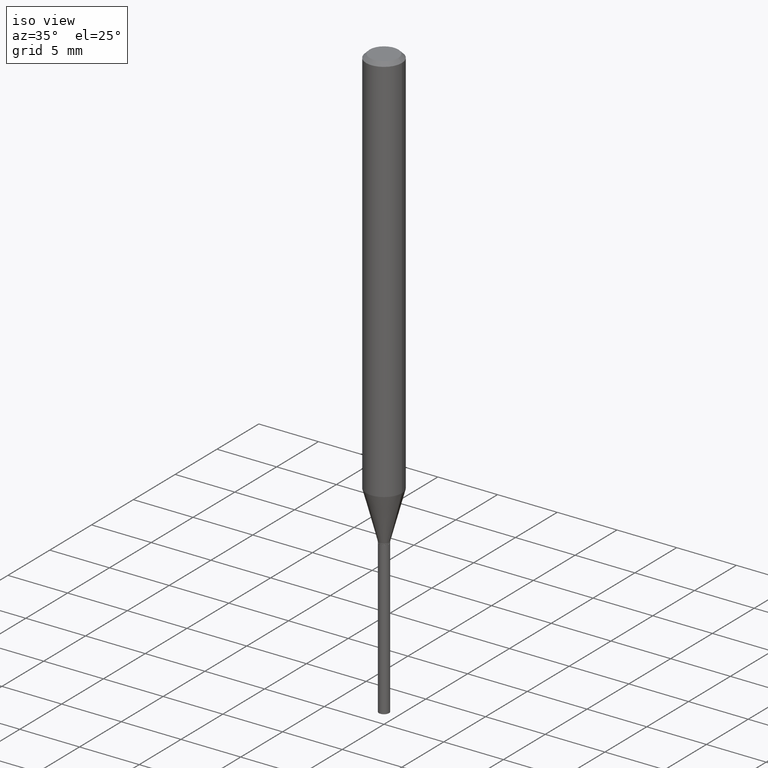
[diagram: clean part render]
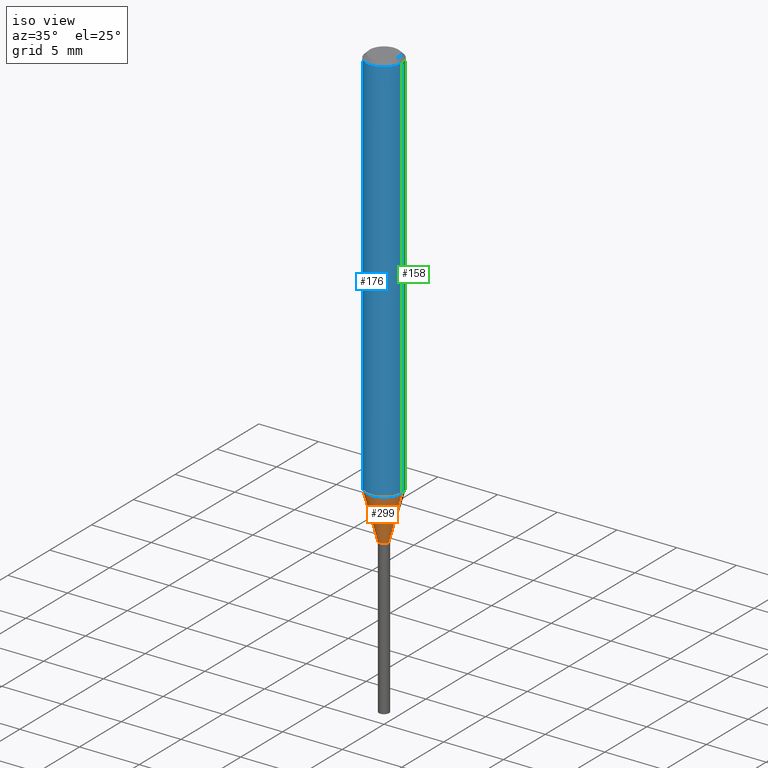
[diagram: same view with three faces highlighted in distinct colors, each labeled with its STEP entity id]
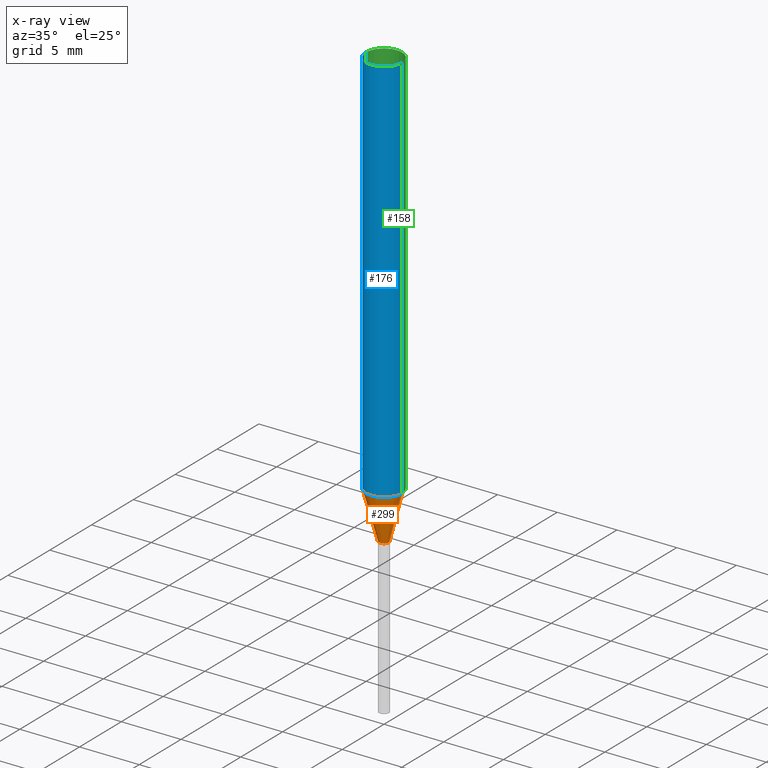
[diagram: x-ray of the same camera — body ghosted, the three highlighted faces saturated]
A machine part, iso view with three faces highlighted in distinct colors.
The next image is the same camera in x-ray (body ghosted, the three faces saturated) — at least one of them is partly hidden behind the body in this view.
Their STEP definitions:

[orange] entity #299 — the highlighted conical surface has half-angle 15 deg.
#9 = VECTOR ( 'NONE', #57, 39.37007874015748143 ) ;
#22 = CARTESIAN_POINT ( 'NONE',  ( 3.164031300802735254E-29, -4.517398142363389348E-15, -1.293834250839836386 ) ) ;
#29 = EDGE_CURVE ( 'NONE', #325, #163, #32, .T. ) ;
#30 = LINE ( 'NONE', #151, #320 ) ;
#32 = CIRCLE ( 'NONE', #85, 0.01675000000000004610 ) ;
#40 = CARTESIAN_POINT ( 'NONE',  ( 0.05905000000000015098, -4.929742088480765058E-15, -1.293834250839836386 ) ) ;
#57 = DIRECTION ( 'NONE',  ( -0.2588190451025211281, 5.211531920934548675E-15, 0.9659258262890682012 ) ) ;
#65 = AXIS2_PLACEMENT_3D ( 'NONE', #22, #254, #327 ) ;
#85 = AXIS2_PLACEMENT_3D ( 'NONE', #321, #108, #488 ) ;
#86 = CARTESIAN_POINT ( 'NONE',  ( -0.01675000000000004610, -4.957423384371174698E-15, -1.451699999999999990 ) ) ;
#92 = VERTEX_POINT ( 'NONE', #378 ) ;
#99 = ORIENTED_EDGE ( 'NONE', *, *, #441, .T. ) ;
#104 = DIRECTION ( 'NONE',  ( 0.2588190451025211281, 1.565188264969623940E-15, 0.9659258262890682012 ) ) ;
#108 = DIRECTION ( 'NONE',  ( -2.445468806185136597E-29, 3.491481338843145583E-15, 1.000000000000000000 ) ) ;
#113 = CONICAL_SURFACE ( 'NONE', #350, 0.01675000000000004610, 0.2617993877991497964 ) ;
#135 = DIRECTION ( 'NONE',  ( -2.445468806185136597E-29, 3.491481338843145583E-15, 1.000000000000000000 ) ) ;
#138 = VERTEX_POINT ( 'NONE', #40 ) ;
#151 = CARTESIAN_POINT ( 'NONE',  ( 0.01675000000000004610, -5.185548084449840093E-15, -1.451699999999999990 ) ) ;
#159 = CARTESIAN_POINT ( 'NONE',  ( 0.01675000000000004610, -5.185548084449840093E-15, -1.451699999999999990 ) ) ;
#163 = VERTEX_POINT ( 'NONE', #159 ) ;
#193 = FACE_OUTER_BOUND ( 'NONE', #432, .T. ) ;
#230 = ORIENTED_EDGE ( 'NONE', *, *, #379, .F. ) ;
#238 = ORIENTED_EDGE ( 'NONE', *, *, #490, .F. ) ;
#242 = CARTESIAN_POINT ( 'NONE',  ( -0.01675000000000004610, -4.949567551358777537E-15, -1.451699999999999990 ) ) ;
#254 = DIRECTION ( 'NONE',  ( -2.445468806185136597E-29, 3.491481338843145583E-15, 1.000000000000000000 ) ) ;
#274 = CARTESIAN_POINT ( 'NONE',  ( 3.550087065938963142E-29, -5.068583459598594621E-15, -1.451699999999999990 ) ) ;
#299 = ADVANCED_FACE ( 'NONE', ( #193 ), #113, .T. ) ;
#320 = VECTOR ( 'NONE', #104, 39.37007874015748143 ) ;
#321 = CARTESIAN_POINT ( 'NONE',  ( 3.550087065938963142E-29, -5.068583459598594621E-15, -1.451699999999999990 ) ) ;
#325 = VERTEX_POINT ( 'NONE', #86 ) ;
#327 = DIRECTION ( 'NONE',  ( 1.000000000000000000, -6.982962677686271444E-15, 0.000000000000000000 ) ) ;
#341 = ORIENTED_EDGE ( 'NONE', *, *, #29, .T. ) ;
#350 = AXIS2_PLACEMENT_3D ( 'NONE', #274, #135, #430 ) ;
#369 = CIRCLE ( 'NONE', #65, 0.05905000000000015098 ) ;
#378 = CARTESIAN_POINT ( 'NONE',  ( -0.05905000000000015098, -4.097822656897049856E-15, -1.293834250839836386 ) ) ;
#379 = EDGE_CURVE ( 'NONE', #92, #138, #369, .T. ) ;
#430 = DIRECTION ( 'NONE',  ( 1.000000000000000000, -6.982962677686270655E-15, 0.000000000000000000 ) ) ;
#432 = EDGE_LOOP ( 'NONE', ( #238, #341, #99, #230 ) ) ;
#441 = EDGE_CURVE ( 'NONE', #163, #138, #30, .T. ) ;
#477 = LINE ( 'NONE', #242, #9 ) ;
#488 = DIRECTION ( 'NONE',  ( 1.000000000000000000, -6.982962677686270655E-15, 0.000000000000000000 ) ) ;
#490 = EDGE_CURVE ( 'NONE', #325, #92, #477, .T. ) ;

[blue] entity #176 — the highlighted cylindrical surface (edge-blend (fillet) strip) has radius 1.4999 mm, axis along (-0, 0, 1).
#22 = CARTESIAN_POINT ( 'NONE',  ( 3.164031300802735254E-29, -4.517398142363389348E-15, -1.293834250839836386 ) ) ;
#27 = CARTESIAN_POINT ( 'NONE',  ( -0.05905000000000008159, 4.195754854663397395E-16, -2.904631170795525745E-30 ) ) ;
#33 = EDGE_CURVE ( 'NONE', #92, #434, #154, .T. ) ;
#40 = CARTESIAN_POINT ( 'NONE',  ( 0.05905000000000015098, -4.929742088480765058E-15, -1.293834250839836386 ) ) ;
#55 = ORIENTED_EDGE ( 'NONE', *, *, #289, .T. ) ;
#65 = AXIS2_PLACEMENT_3D ( 'NONE', #22, #254, #327 ) ;
#67 = DIRECTION ( 'NONE',  ( -2.445468806185136877E-29, 3.491481338843145188E-15, 1.000000000000000000 ) ) ;
#92 = VERTEX_POINT ( 'NONE', #378 ) ;
#124 = CARTESIAN_POINT ( 'NONE',  ( 0.000000000000000000, 0.000000000000000000, 0.000000000000000000 ) ) ;
#138 = VERTEX_POINT ( 'NONE', #40 ) ;
#146 = CARTESIAN_POINT ( 'NONE',  ( 2.888098660104664642E-31, -4.123439461173780879E-17, -0.01181000000000007565 ) ) ;
#154 = LINE ( 'NONE', #27, #352 ) ;
#164 = CARTESIAN_POINT ( 'NONE',  ( 0.05905000000000008159, -4.123439461173746736E-16, 2.879382386107504424E-30 ) ) ;
#176 = ADVANCED_FACE ( 'NONE', ( #415 ), #340, .T. ) ;
#182 = AXIS2_PLACEMENT_3D ( 'NONE', #146, #317, #470 ) ;
#207 = CIRCLE ( 'NONE', #182, 0.05905000000000000526 ) ;
#219 = AXIS2_PLACEMENT_3D ( 'NONE', #124, #300, #224 ) ;
#224 = DIRECTION ( 'NONE',  ( 1.000000000000000000, -6.982962677686267499E-15, 4.876176775795936353E-29 ) ) ;
#254 = DIRECTION ( 'NONE',  ( -2.445468806185136597E-29, 3.491481338843145583E-15, 1.000000000000000000 ) ) ;
#277 = VERTEX_POINT ( 'NONE', #312 ) ;
#281 = ORIENTED_EDGE ( 'NONE', *, *, #453, .F. ) ;
#286 = ORIENTED_EDGE ( 'NONE', *, *, #379, .T. ) ;
#289 = EDGE_CURVE ( 'NONE', #138, #277, #304, .T. ) ;
#300 = DIRECTION ( 'NONE',  ( -2.445468806185136597E-29, 3.491481338843145583E-15, 1.000000000000000000 ) ) ;
#304 = LINE ( 'NONE', #164, #419 ) ;
#308 = DIRECTION ( 'NONE',  ( -2.445468806185136877E-29, 3.491481338843145188E-15, 1.000000000000000000 ) ) ;
#312 = CARTESIAN_POINT ( 'NONE',  ( 0.05905000000000000526, -4.535783407291119586E-16, -0.01181000000000007565 ) ) ;
#317 = DIRECTION ( 'NONE',  ( -2.445468806185136597E-29, 3.491481338843145583E-15, 1.000000000000000000 ) ) ;
#327 = DIRECTION ( 'NONE',  ( 1.000000000000000000, -6.982962677686271444E-15, 0.000000000000000000 ) ) ;
#340 = CYLINDRICAL_SURFACE ( 'NONE', #219, 0.05905000000000008159 ) ;
#352 = VECTOR ( 'NONE', #67, 39.37007874015748143 ) ;
#355 = ORIENTED_EDGE ( 'NONE', *, *, #33, .F. ) ;
#369 = CIRCLE ( 'NONE', #65, 0.05905000000000015098 ) ;
#378 = CARTESIAN_POINT ( 'NONE',  ( -0.05905000000000015098, -4.097822656897049856E-15, -1.293834250839836386 ) ) ;
#379 = EDGE_CURVE ( 'NONE', #92, #138, #369, .T. ) ;
#402 = CARTESIAN_POINT ( 'NONE',  ( -0.05905000000000000526, -1.859740783021222468E-15, -0.01181000000000007565 ) ) ;
#415 = FACE_OUTER_BOUND ( 'NONE', #487, .T. ) ;
#419 = VECTOR ( 'NONE', #308, 39.37007874015748143 ) ;
#434 = VERTEX_POINT ( 'NONE', #402 ) ;
#453 = EDGE_CURVE ( 'NONE', #434, #277, #207, .T. ) ;
#470 = DIRECTION ( 'NONE',  ( 1.000000000000000000, -6.982962677686268288E-15, 0.000000000000000000 ) ) ;
#487 = EDGE_LOOP ( 'NONE', ( #355, #286, #55, #281 ) ) ;

[green] entity #158 — the highlighted cylindrical surface (edge-blend (fillet) strip) has radius 1.4999 mm, axis along (-0, 0, 1).
#10 = ORIENTED_EDGE ( 'NONE', *, *, #39, .F. ) ;
#27 = CARTESIAN_POINT ( 'NONE',  ( -0.05905000000000008159, 4.195754854663397395E-16, -2.904631170795525745E-30 ) ) ;
#33 = EDGE_CURVE ( 'NONE', #92, #434, #154, .T. ) ;
#39 = EDGE_CURVE ( 'NONE', #277, #434, #361, .T. ) ;
#40 = CARTESIAN_POINT ( 'NONE',  ( 0.05905000000000015098, -4.929742088480765058E-15, -1.293834250839836386 ) ) ;
#43 = AXIS2_PLACEMENT_3D ( 'NONE', #58, #247, #356 ) ;
#58 = CARTESIAN_POINT ( 'NONE',  ( 3.164031300802735254E-29, -4.517398142363389348E-15, -1.293834250839836386 ) ) ;
#67 = DIRECTION ( 'NONE',  ( -2.445468806185136877E-29, 3.491481338843145188E-15, 1.000000000000000000 ) ) ;
#73 = DIRECTION ( 'NONE',  ( 1.000000000000000000, -6.982962677686267499E-15, 4.876176775795936353E-29 ) ) ;
#88 = ORIENTED_EDGE ( 'NONE', *, *, #289, .F. ) ;
#92 = VERTEX_POINT ( 'NONE', #378 ) ;
#101 = DIRECTION ( 'NONE',  ( 1.000000000000000000, -6.982962677686268288E-15, 0.000000000000000000 ) ) ;
#138 = VERTEX_POINT ( 'NONE', #40 ) ;
#154 = LINE ( 'NONE', #27, #352 ) ;
#158 = ADVANCED_FACE ( 'NONE', ( #294 ), #298, .T. ) ;
#164 = CARTESIAN_POINT ( 'NONE',  ( 0.05905000000000008159, -4.123439461173746736E-16, 2.879382386107504424E-30 ) ) ;
#191 = CARTESIAN_POINT ( 'NONE',  ( 0.000000000000000000, 0.000000000000000000, 0.000000000000000000 ) ) ;
#194 = AXIS2_PLACEMENT_3D ( 'NONE', #191, #411, #73 ) ;
#239 = CIRCLE ( 'NONE', #43, 0.05905000000000015098 ) ;
#243 = EDGE_LOOP ( 'NONE', ( #478, #462, #10, #88 ) ) ;
#247 = DIRECTION ( 'NONE',  ( -2.445468806185136597E-29, 3.491481338843145583E-15, 1.000000000000000000 ) ) ;
#250 = CARTESIAN_POINT ( 'NONE',  ( 2.888098660104664642E-31, -4.123439461173780879E-17, -0.01181000000000007565 ) ) ;
#277 = VERTEX_POINT ( 'NONE', #312 ) ;
#289 = EDGE_CURVE ( 'NONE', #138, #277, #304, .T. ) ;
#294 = FACE_OUTER_BOUND ( 'NONE', #243, .T. ) ;
#298 = CYLINDRICAL_SURFACE ( 'NONE', #194, 0.05905000000000008159 ) ;
#304 = LINE ( 'NONE', #164, #419 ) ;
#308 = DIRECTION ( 'NONE',  ( -2.445468806185136877E-29, 3.491481338843145188E-15, 1.000000000000000000 ) ) ;
#312 = CARTESIAN_POINT ( 'NONE',  ( 0.05905000000000000526, -4.535783407291119586E-16, -0.01181000000000007565 ) ) ;
#352 = VECTOR ( 'NONE', #67, 39.37007874015748143 ) ;
#356 = DIRECTION ( 'NONE',  ( 1.000000000000000000, -6.982962677686271444E-15, 0.000000000000000000 ) ) ;
#361 = CIRCLE ( 'NONE', #438, 0.05905000000000000526 ) ;
#378 = CARTESIAN_POINT ( 'NONE',  ( -0.05905000000000015098, -4.097822656897049856E-15, -1.293834250839836386 ) ) ;
#397 = EDGE_CURVE ( 'NONE', #138, #92, #239, .T. ) ;
#402 = CARTESIAN_POINT ( 'NONE',  ( -0.05905000000000000526, -1.859740783021222468E-15, -0.01181000000000007565 ) ) ;
#411 = DIRECTION ( 'NONE',  ( -2.445468806185136597E-29, 3.491481338843145583E-15, 1.000000000000000000 ) ) ;
#419 = VECTOR ( 'NONE', #308, 39.37007874015748143 ) ;
#434 = VERTEX_POINT ( 'NONE', #402 ) ;
#438 = AXIS2_PLACEMENT_3D ( 'NONE', #250, #450, #101 ) ;
#450 = DIRECTION ( 'NONE',  ( -2.445468806185136597E-29, 3.491481338843145583E-15, 1.000000000000000000 ) ) ;
#462 = ORIENTED_EDGE ( 'NONE', *, *, #33, .T. ) ;
#478 = ORIENTED_EDGE ( 'NONE', *, *, #397, .T. ) ;